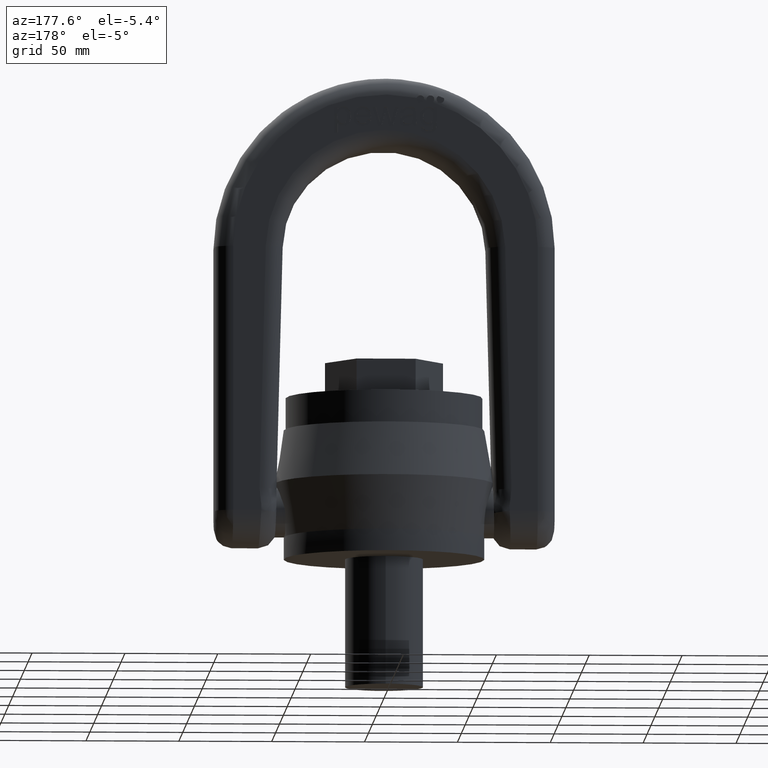
[diagram: clean part render]
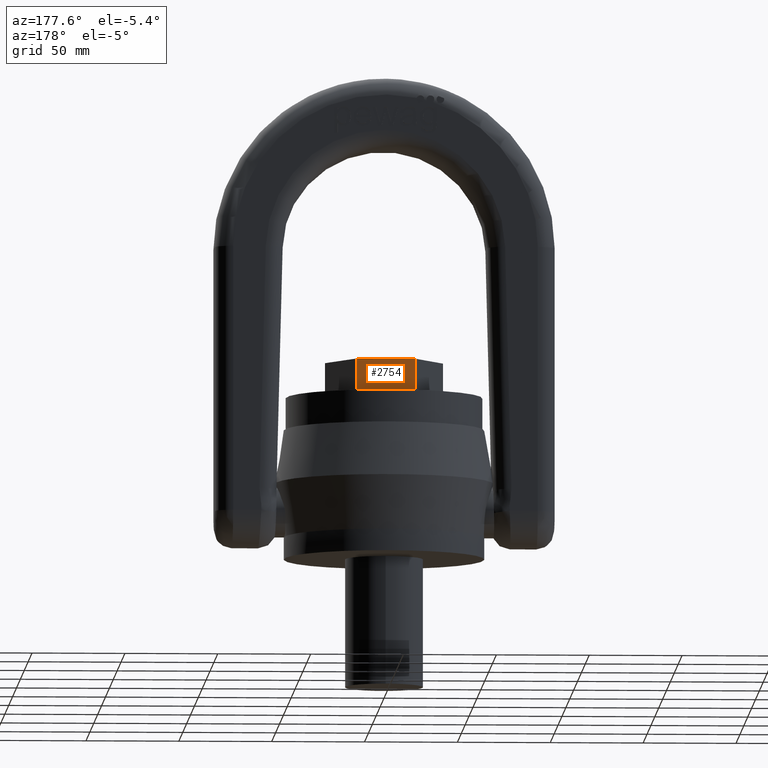
[diagram: same view with one face highlighted and labeled with its STEP entity id]
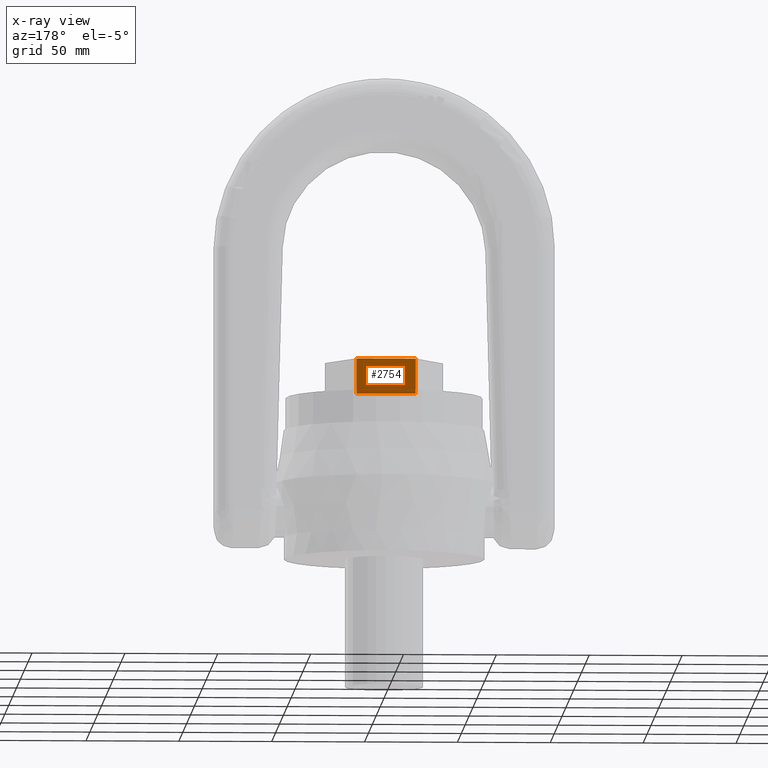
[diagram: x-ray of the same camera — body ghosted, the highlighted face saturated]
A machine part, auxiliary view. The second image highlights one B-rep face of the part: STEP entity #2754.
The next image is the same camera in x-ray: the body ghosted, the highlighted face saturated — about 0% of this face is hidden behind the body in this view.
In plain terms, the highlighted planar face has unit normal (0, -1, 0).
Its self-contained STEP definition (entity closure, byte-faithful):
#1759=LINE('',#6628,#2041);
#1770=LINE('',#6650,#2052);
#1772=LINE('',#6654,#2054);
#1773=LINE('',#6656,#2055);
#2041=VECTOR('',#5848,1.);
#2052=VECTOR('',#5867,1.);
#2054=VECTOR('',#5871,1.);
#2055=VECTOR('',#5872,1.);
#2418=FACE_OUTER_BOUND('',#3084,.T.);
#2635=PLANE('',#5627);
#2754=ADVANCED_FACE('',(#2418),#2635,.F.);
#3084=EDGE_LOOP('',(#3375,#3376,#3377,#3378));
#3375=ORIENTED_EDGE('',*,*,#4955,.T.);
#3376=ORIENTED_EDGE('',*,*,#4968,.F.);
#3377=ORIENTED_EDGE('',*,*,#4969,.F.);
#3378=ORIENTED_EDGE('',*,*,#4966,.T.);
#4555=VERTEX_POINT('',#6627);
#4556=VERTEX_POINT('',#6629);
#4563=VERTEX_POINT('',#6651);
#4564=VERTEX_POINT('',#6655);
#4955=EDGE_CURVE('',#4556,#4555,#1759,.T.);
#4966=EDGE_CURVE('',#4563,#4556,#1770,.T.);
#4968=EDGE_CURVE('',#4564,#4555,#1772,.T.);
#4969=EDGE_CURVE('',#4563,#4564,#1773,.T.);
#5627=AXIS2_PLACEMENT_3D('',#6657,#5873,#5874);
#5848=DIRECTION('',(-1.,0.,0.));
#5867=DIRECTION('',(0.,0.,-1.));
#5871=DIRECTION('',(0.,0.,-1.));
#5872=DIRECTION('',(-1.,0.,0.));
#5873=DIRECTION('',(0.,-1.,0.));
#5874=DIRECTION('',(0.,0.,-1.));
#6627=CARTESIAN_POINT('',(-15.8771324027147,27.5,87.));
#6628=CARTESIAN_POINT('',(15.8771324027147,27.5,87.));
#6629=CARTESIAN_POINT('',(15.8771324027147,27.5,87.));
#6650=CARTESIAN_POINT('',(15.8771324027147,27.5,106.));
#6651=CARTESIAN_POINT('',(15.8771324027147,27.5,106.));
#6654=CARTESIAN_POINT('',(-15.8771324027147,27.5,106.));
#6655=CARTESIAN_POINT('',(-15.8771324027147,27.5,106.));
#6656=CARTESIAN_POINT('',(15.8771324027147,27.5,106.));
#6657=CARTESIAN_POINT('',(15.8771324027147,27.5,106.));